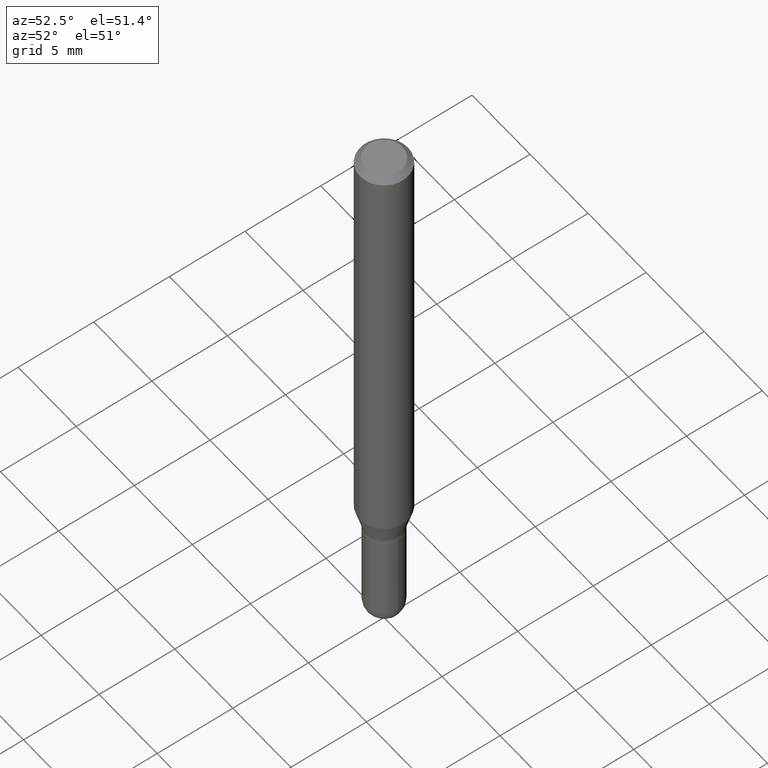
[diagram: clean part render]
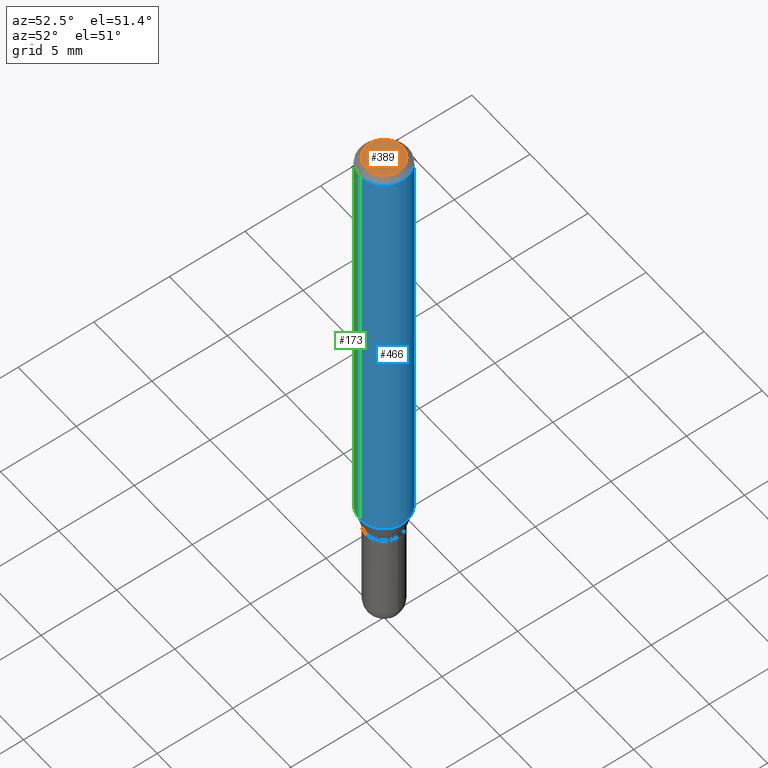
[diagram: same view with three faces highlighted in distinct colors, each labeled with its STEP entity id]
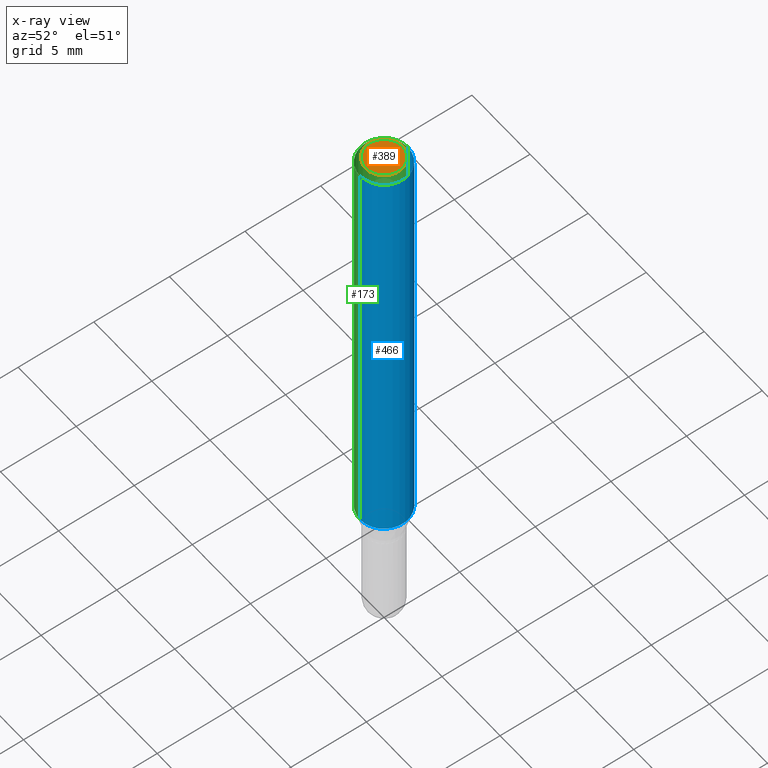
[diagram: x-ray of the same camera — body ghosted, the three highlighted faces saturated]
A machine part, auxiliary view with three faces highlighted in distinct colors.
The next image is the same camera in x-ray (body ghosted, the three faces saturated) — at least one of them is partly hidden behind the body in this view.
Their STEP definitions:

[orange] entity #389 — the highlighted planar face has unit normal (0, -0, -1).
#12 = DIRECTION ( 'NONE',  ( 6.982962677686265922E-15, 1.000000000000000000, -3.491560663196514639E-15 ) ) ;
#39 = EDGE_CURVE ( 'NONE', #127, #360, #444, .T. ) ;
#59 = AXIS2_PLACEMENT_3D ( 'NONE', #431, #509, #73 ) ;
#73 = DIRECTION ( 'NONE',  ( -6.982962677686266711E-15, -1.000000000000000000, 3.491560663196515033E-15 ) ) ;
#94 = CARTESIAN_POINT ( 'NONE',  ( -3.773273898774340269E-16, -0.04749999999999999362, -1.622940483035402324E-16 ) ) ;
#103 = FACE_OUTER_BOUND ( 'NONE', #170, .T. ) ;
#109 = ORIENTED_EDGE ( 'NONE', *, *, #39, .T. ) ;
#126 = CIRCLE ( 'NONE', #411, 0.04749999999999999362 ) ;
#127 = VERTEX_POINT ( 'NONE', #241 ) ;
#142 = EDGE_CURVE ( 'NONE', #360, #127, #126, .T. ) ;
#170 = EDGE_LOOP ( 'NONE', ( #109, #381 ) ) ;
#207 = CARTESIAN_POINT ( 'NONE',  ( 3.316907271900976096E-16, 0.04749999999999999362, -3.299207214045217911E-16 ) ) ;
#215 = AXIS2_PLACEMENT_3D ( 'NONE', #207, #365, #12 ) ;
#233 = CARTESIAN_POINT ( 'NONE',  ( 8.024457337022753058E-45, -1.145731818504667129E-30, -3.281431798053746659E-16 ) ) ;
#241 = CARTESIAN_POINT ( 'NONE',  ( 3.840629472727447874E-16, 0.04749999999999999362, -4.939923113072091241E-16 ) ) ;
#360 = VERTEX_POINT ( 'NONE', #94 ) ;
#365 = DIRECTION ( 'NONE',  ( 2.445413414285235528E-29, -3.491560663196514639E-15, -1.000000000000000000 ) ) ;
#381 = ORIENTED_EDGE ( 'NONE', *, *, #142, .T. ) ;
#389 = ADVANCED_FACE ( 'NONE', ( #103 ), #410, .F. ) ;
#399 = DIRECTION ( 'NONE',  ( -6.982962677686266711E-15, -1.000000000000000000, 3.491560663196515033E-15 ) ) ;
#410 = PLANE ( 'NONE',  #215 ) ;
#411 = AXIS2_PLACEMENT_3D ( 'NONE', #233, #429, #399 ) ;
#429 = DIRECTION ( 'NONE',  ( -2.445413414285235808E-29, 3.491560663196514639E-15, 1.000000000000000000 ) ) ;
#431 = CARTESIAN_POINT ( 'NONE',  ( 8.024457337022753058E-45, -1.145731818504667129E-30, -3.281431798053746659E-16 ) ) ;
#444 = CIRCLE ( 'NONE', #59, 0.04749999999999999362 ) ;
#509 = DIRECTION ( 'NONE',  ( -2.445413414285235808E-29, 3.491560663196514639E-15, 1.000000000000000000 ) ) ;

[blue] entity #466 — the highlighted cylindrical surface (edge-blend (fillet) strip) has radius 1.5875 mm, axis along (-0, 0, 1).
#19 = VERTEX_POINT ( 'NONE', #137 ) ;
#21 = VERTEX_POINT ( 'NONE', #293 ) ;
#23 = CARTESIAN_POINT ( 'NONE',  ( 0.000000000000000000, 0.000000000000000000, 0.000000000000000000 ) ) ;
#31 = LINE ( 'NONE', #345, #79 ) ;
#63 = ORIENTED_EDGE ( 'NONE', *, *, #501, .F. ) ;
#67 = EDGE_LOOP ( 'NONE', ( #133, #84, #63, #182 ) ) ;
#79 = VECTOR ( 'NONE', #380, 39.37007874015748143 ) ;
#84 = ORIENTED_EDGE ( 'NONE', *, *, #433, .T. ) ;
#118 = CARTESIAN_POINT ( 'NONE',  ( -4.364351673553635169E-16, -0.06250000000000402456, -1.151287187078898544 ) ) ;
#120 = CARTESIAN_POINT ( 'NONE',  ( -4.364351673553916201E-16, -0.06250000000000000000, 2.182225414497821649E-16 ) ) ;
#133 = ORIENTED_EDGE ( 'NONE', *, *, #220, .T. ) ;
#137 = CARTESIAN_POINT ( 'NONE',  ( 4.440892098500909166E-16, 0.06249999999999995143, -0.01500000000000054588 ) ) ;
#165 = EDGE_CURVE ( 'NONE', #187, #336, #424, .T. ) ;
#182 = ORIENTED_EDGE ( 'NONE', *, *, #165, .F. ) ;
#187 = VERTEX_POINT ( 'NONE', #118 ) ;
#198 = CIRCLE ( 'NONE', #486, 0.06250000000000000000 ) ;
#214 = VECTOR ( 'NONE', #507, 39.37007874015748143 ) ;
#218 = DIRECTION ( 'NONE',  ( -2.445413414285235808E-29, 3.491560663196514639E-15, 1.000000000000000000 ) ) ;
#220 = EDGE_CURVE ( 'NONE', #187, #21, #198, .T. ) ;
#264 = DIRECTION ( 'NONE',  ( -6.982962677686265922E-15, -1.000000000000000000, 3.491560663196514639E-15 ) ) ;
#287 = DIRECTION ( 'NONE',  ( -6.982962677686265922E-15, -1.000000000000000000, 4.370956789862821150E-15 ) ) ;
#293 = CARTESIAN_POINT ( 'NONE',  ( 4.440892098500906207E-16, 0.06249999999999597544, -1.151287187078898988 ) ) ;
#301 = CYLINDRICAL_SURFACE ( 'NONE', #354, 0.06250000000000000000 ) ;
#331 = AXIS2_PLACEMENT_3D ( 'NONE', #425, #502, #415 ) ;
#336 = VERTEX_POINT ( 'NONE', #482 ) ;
#345 = CARTESIAN_POINT ( 'NONE',  ( 4.440892098500625669E-16, 0.06250000000000000000, -2.182225414497821649E-16 ) ) ;
#354 = AXIS2_PLACEMENT_3D ( 'NONE', #23, #218, #264 ) ;
#375 = DIRECTION ( 'NONE',  ( -2.445413414285235808E-29, 3.491560663196514639E-15, 1.000000000000000000 ) ) ;
#380 = DIRECTION ( 'NONE',  ( -2.445413414285235808E-29, 3.491560663196514639E-15, 1.000000000000000000 ) ) ;
#415 = DIRECTION ( 'NONE',  ( -6.982962677686265922E-15, -1.000000000000000000, 3.483106191921935554E-15 ) ) ;
#424 = LINE ( 'NONE', #120, #214 ) ;
#425 = CARTESIAN_POINT ( 'NONE',  ( 3.668120121427934129E-31, -5.237340994794886540E-17, -0.01500000000000032904 ) ) ;
#433 = EDGE_CURVE ( 'NONE', #21, #19, #31, .T. ) ;
#466 = ADVANCED_FACE ( 'NONE', ( #492 ), #301, .T. ) ;
#482 = CARTESIAN_POINT ( 'NONE',  ( -4.364351673553912750E-16, -0.06250000000000005551, -0.01500000000000011047 ) ) ;
#485 = CARTESIAN_POINT ( 'NONE',  ( 2.815373130977454696E-29, -4.019789054446849905E-15, -1.151287187078898766 ) ) ;
#486 = AXIS2_PLACEMENT_3D ( 'NONE', #485, #375, #287 ) ;
#492 = FACE_OUTER_BOUND ( 'NONE', #67, .T. ) ;
#501 = EDGE_CURVE ( 'NONE', #336, #19, #505, .T. ) ;
#502 = DIRECTION ( 'NONE',  ( -2.445413414285235808E-29, 3.491560663196514639E-15, 1.000000000000000000 ) ) ;
#505 = CIRCLE ( 'NONE', #331, 0.06250000000000000000 ) ;
#507 = DIRECTION ( 'NONE',  ( -2.445413414285235808E-29, 3.491560663196514639E-15, 1.000000000000000000 ) ) ;

[green] entity #173 — the highlighted cylindrical surface (edge-blend (fillet) strip) has radius 1.5875 mm, axis along (-0, 0, 1).
#18 = AXIS2_PLACEMENT_3D ( 'NONE', #450, #104, #256 ) ;
#19 = VERTEX_POINT ( 'NONE', #137 ) ;
#21 = VERTEX_POINT ( 'NONE', #293 ) ;
#31 = LINE ( 'NONE', #345, #79 ) ;
#37 = DIRECTION ( 'NONE',  ( -2.445413414285235808E-29, 3.491560663196514639E-15, 1.000000000000000000 ) ) ;
#38 = EDGE_CURVE ( 'NONE', #19, #336, #85, .T. ) ;
#45 = FACE_OUTER_BOUND ( 'NONE', #367, .T. ) ;
#70 = DIRECTION ( 'NONE',  ( -6.982962677686265922E-15, -1.000000000000000000, 4.370956789862821150E-15 ) ) ;
#79 = VECTOR ( 'NONE', #380, 39.37007874015748143 ) ;
#85 = CIRCLE ( 'NONE', #18, 0.06250000000000000000 ) ;
#95 = ORIENTED_EDGE ( 'NONE', *, *, #111, .T. ) ;
#104 = DIRECTION ( 'NONE',  ( -2.445413414285235808E-29, 3.491560663196514639E-15, 1.000000000000000000 ) ) ;
#105 = AXIS2_PLACEMENT_3D ( 'NONE', #310, #272, #151 ) ;
#111 = EDGE_CURVE ( 'NONE', #21, #187, #372, .T. ) ;
#118 = CARTESIAN_POINT ( 'NONE',  ( -4.364351673553635169E-16, -0.06250000000000402456, -1.151287187078898544 ) ) ;
#120 = CARTESIAN_POINT ( 'NONE',  ( -4.364351673553916201E-16, -0.06250000000000000000, 2.182225414497821649E-16 ) ) ;
#137 = CARTESIAN_POINT ( 'NONE',  ( 4.440892098500909166E-16, 0.06249999999999995143, -0.01500000000000054588 ) ) ;
#151 = DIRECTION ( 'NONE',  ( -6.982962677686265922E-15, -1.000000000000000000, 3.491560663196514639E-15 ) ) ;
#165 = EDGE_CURVE ( 'NONE', #187, #336, #424, .T. ) ;
#173 = ADVANCED_FACE ( 'NONE', ( #45 ), #268, .T. ) ;
#180 = ORIENTED_EDGE ( 'NONE', *, *, #433, .F. ) ;
#187 = VERTEX_POINT ( 'NONE', #118 ) ;
#210 = ORIENTED_EDGE ( 'NONE', *, *, #165, .T. ) ;
#214 = VECTOR ( 'NONE', #507, 39.37007874015748143 ) ;
#256 = DIRECTION ( 'NONE',  ( -6.982962677686265922E-15, -1.000000000000000000, 3.483106191921935554E-15 ) ) ;
#268 = CYLINDRICAL_SURFACE ( 'NONE', #105, 0.06250000000000000000 ) ;
#272 = DIRECTION ( 'NONE',  ( -2.445413414285235808E-29, 3.491560663196514639E-15, 1.000000000000000000 ) ) ;
#293 = CARTESIAN_POINT ( 'NONE',  ( 4.440892098500906207E-16, 0.06249999999999597544, -1.151287187078898988 ) ) ;
#310 = CARTESIAN_POINT ( 'NONE',  ( 0.000000000000000000, 0.000000000000000000, 0.000000000000000000 ) ) ;
#336 = VERTEX_POINT ( 'NONE', #482 ) ;
#345 = CARTESIAN_POINT ( 'NONE',  ( 4.440892098500625669E-16, 0.06250000000000000000, -2.182225414497821649E-16 ) ) ;
#367 = EDGE_LOOP ( 'NONE', ( #180, #95, #210, #413 ) ) ;
#371 = AXIS2_PLACEMENT_3D ( 'NONE', #420, #37, #70 ) ;
#372 = CIRCLE ( 'NONE', #371, 0.06250000000000000000 ) ;
#380 = DIRECTION ( 'NONE',  ( -2.445413414285235808E-29, 3.491560663196514639E-15, 1.000000000000000000 ) ) ;
#413 = ORIENTED_EDGE ( 'NONE', *, *, #38, .F. ) ;
#420 = CARTESIAN_POINT ( 'NONE',  ( 2.815373130977454696E-29, -4.019789054446849905E-15, -1.151287187078898766 ) ) ;
#424 = LINE ( 'NONE', #120, #214 ) ;
#433 = EDGE_CURVE ( 'NONE', #21, #19, #31, .T. ) ;
#450 = CARTESIAN_POINT ( 'NONE',  ( 3.668120121427934129E-31, -5.237340994794886540E-17, -0.01500000000000032904 ) ) ;
#482 = CARTESIAN_POINT ( 'NONE',  ( -4.364351673553912750E-16, -0.06250000000000005551, -0.01500000000000011047 ) ) ;
#507 = DIRECTION ( 'NONE',  ( -2.445413414285235808E-29, 3.491560663196514639E-15, 1.000000000000000000 ) ) ;